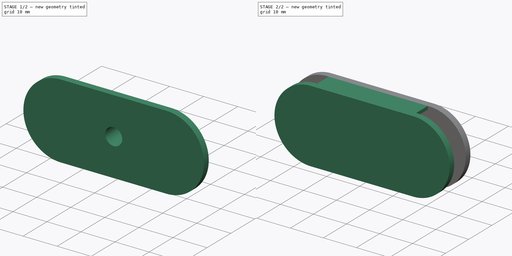
[diagram: build sequence overview — one tinted view per stage of 2, left to right]
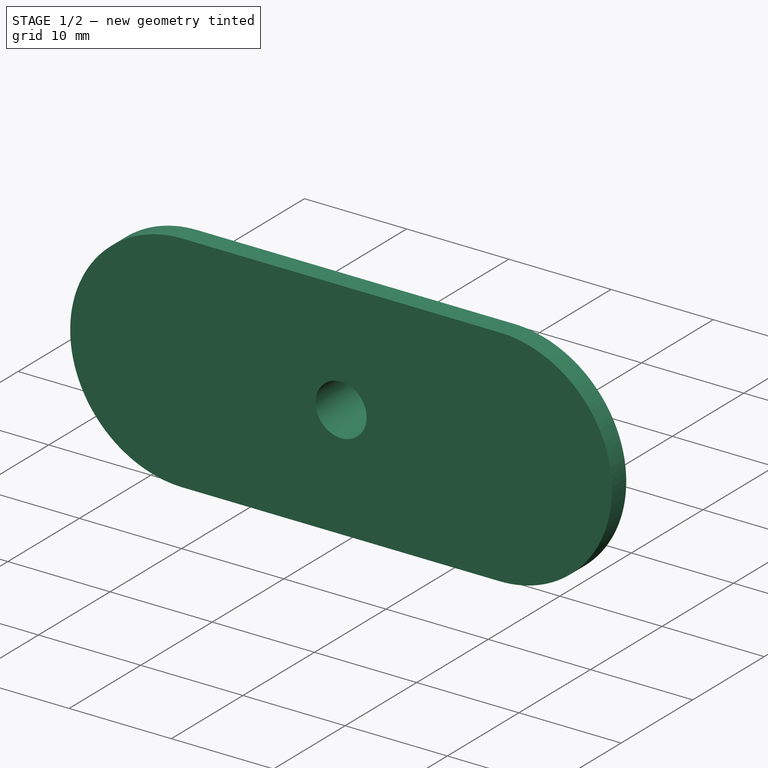
[diagram: stage 1 of 2 — iso view after this stage's code; geometry added in this stage tinted green]
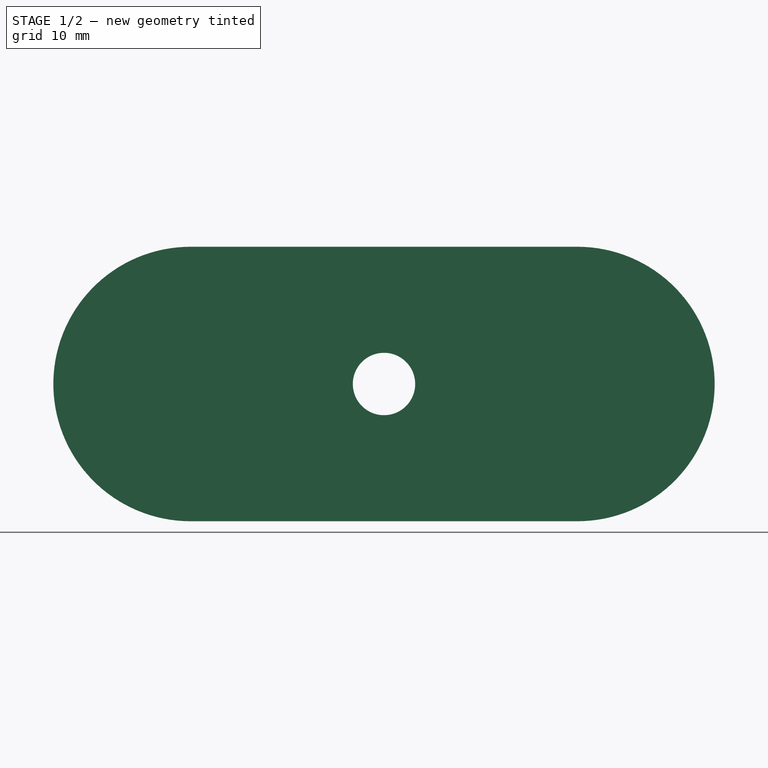
[diagram: stage 1 of 2 — front view after this stage's code; geometry added in this stage tinted green]
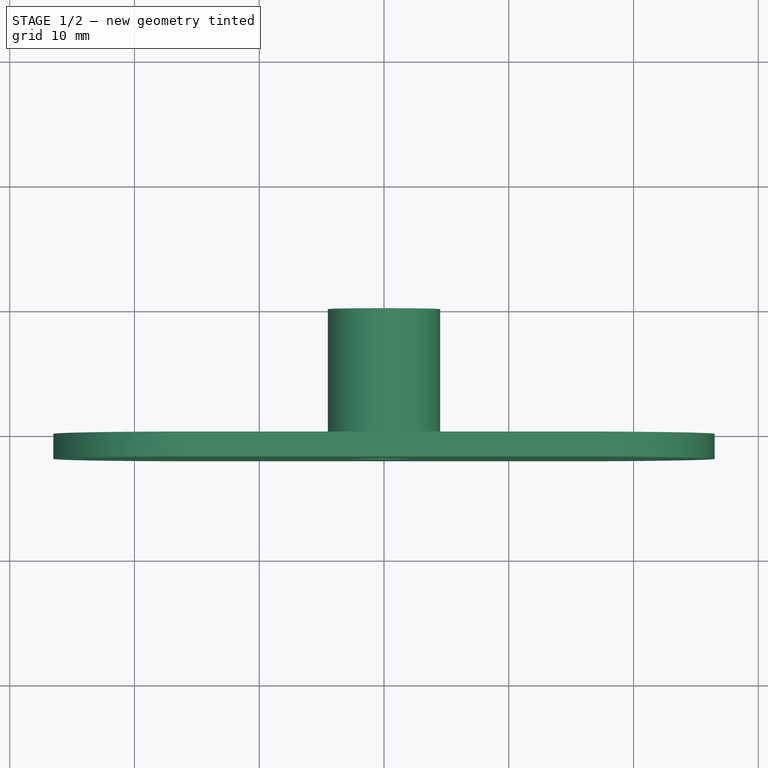
[diagram: stage 1 of 2 — top view after this stage's code; geometry added in this stage tinted green]
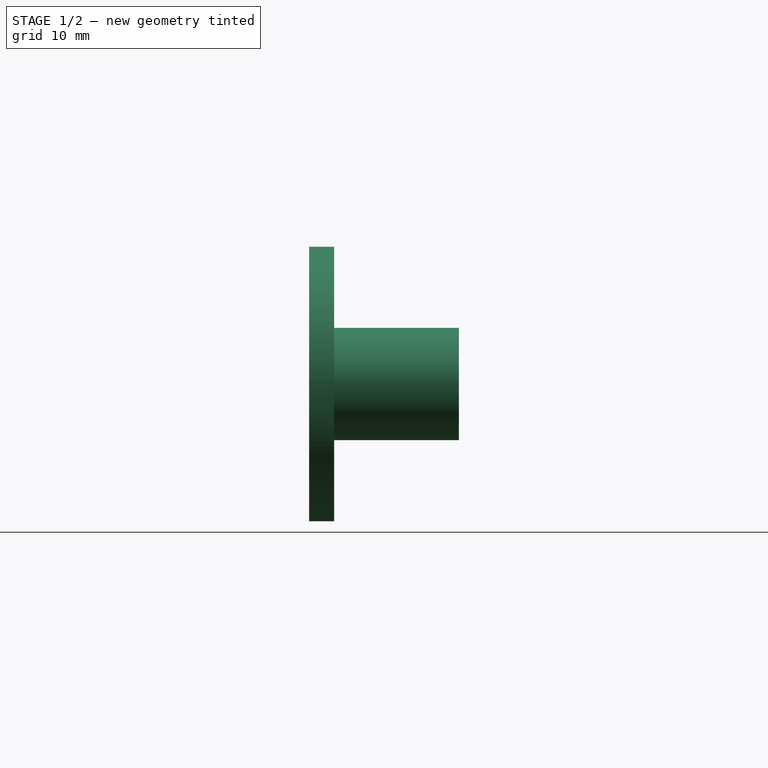
[diagram: stage 1 of 2 — right view after this stage's code; geometry added in this stage tinted green]
FCSTD DOCUMENT  (FreeCAD 0.16R6706 (Git))
Label: Stepper_magnet_holder_01
License: All rights reserved
LicenseURL: http://en.wikipedia.org/wiki/All_rights_reserved
objects: Sketcher::SketchObject×4, PartDesign::Pad×4, Spreadsheet::Sheet×1
note: 12 computed .brp shape members not serialized (recipe doc carries the construction recipe); baked Part::Feature solids carry a one-line shape summary decoded from their .brp

FEATURE [Spreadsheet::Sheet] Spreadsheet  label="prefs"
  cells = A1=Total length; B1(total_length)=20; C1=mm; D1=name=total_length; A2=Stepper radius; B2(stepper_radius)=2.5; C2=mm; D2=name=stepper_radius; A3=Print thickness; B3(print_thickness)=2; C3=mm; D3=name=print_thickness; A4=Magnet radius; B4(magnet_radius)=10; C4=mm; D4=name=magnet_radius; A5=Magnet thickness; B5(magnet_thickness)=5; C5=mm; D5=name=magnet_thickness; A6=Fixation hole radius; B6(fixing_hole)=1; C6=mm; D6=name=fixing_hole
FEATURE [Sketcher::SketchObject] Sketch
  Placement = pos=(0,0,0) rot=(1,0,0;1.5708rad)
  expr: Constraints[2] = prefs.stepper_radius + prefs.print_thickness
  expr: Constraints[1] = prefs.stepper_radius
  sketch-geometry (2):
    g0: Circle CenterX=0 CenterY=0 CenterZ=0 NormalX=0 NormalY=0 NormalZ=1 Radius=2.5
    g1: Circle CenterX=0 CenterY=0 CenterZ=0 NormalX=0 NormalY=0 NormalZ=1 Radius=4.5
  constraints (4):
    c: Coincident(g1,g-1)
    c: Radius(g0) = 2.5
    c: Radius(g1) = 4.5
    c: Coincident(g0,g-1)
FEATURE [PartDesign::Pad] Pad
  Length = 10
  Length2 = 100
  Placement = pos=(0,0,0) rot=(1,0,0;1.5708rad)
  Sketch = -> Sketch
  Type = 0
  expr: Length = prefs.magnet_radius
FEATURE [Sketcher::SketchObject] Sketch001
  Placement = pos=(0,-10,0) rot=(1,0,0;1.5708rad)
  Support = -> Pad [Face4]
  expr: Constraints[15] = prefs.magnet_radius + prefs.stepper_radius + prefs.print_thickness + 1
  expr: Constraints[14] = prefs.magnet_radius + prefs.stepper_radius + prefs.print_thickness + 1
  expr: Constraints[13] = prefs.magnet_radius * 2 + prefs.print_thickness
  expr: Constraints[1] = prefs.stepper_radius
  sketch-geometry (5):
    g0: Circle CenterX=0 CenterY=0 CenterZ=0 NormalX=0 NormalY=0 NormalZ=1 Radius=2.5
    g1: LineSegment StartX=15.5 StartY=-11 StartZ=0 EndX=-15.5 EndY=-11 EndZ=0
    g2: LineSegment StartX=-15.5 StartY=11 StartZ=0 EndX=15.5 EndY=11 EndZ=0
    g3: ArcOfCircle CenterX=15.5 CenterY=0 CenterZ=0 NormalX=0 NormalY=0 NormalZ=1 Radius=11 StartAngle=4.71239 EndAngle=7.85398
    g4: ArcOfCircle CenterX=-15.5 CenterY=0 CenterZ=0 NormalX=0 NormalY=0 NormalZ=1 Radius=11 StartAngle=1.57079 EndAngle=4.71239
  constraints (16):
    c: Coincident(g0,g-1)
    c: Radius(g0) = 2.5
    c: Horizontal(g1)
    c: Horizontal(g2)
    c: Coincident(g3,g2)
    c: Coincident(g3,g1)
    c: Tangent(g3,g2)
    c: Tangent(g1,g3)
    c: PointOnObject(g4,g-1)
    c: Coincident(g4,g2)
    c: Coincident(g4,g1)
    c: Tangent(g4,g1)
    c: Tangent(g4,g2)
    c: DistanceY(g1,g2) = 22
    c: DistanceX(g-1,g3) = 15.5
    c: DistanceX(g4,g-1) = 15.5
FEATURE [PartDesign::Pad] Pad001
  Length = 2
  Length2 = 100
  Placement = pos=(0,0,0) rot=(1,0,0;1.5708rad)
  Sketch = -> Sketch001
  Type = 0
  expr: Length = prefs.print_thickness
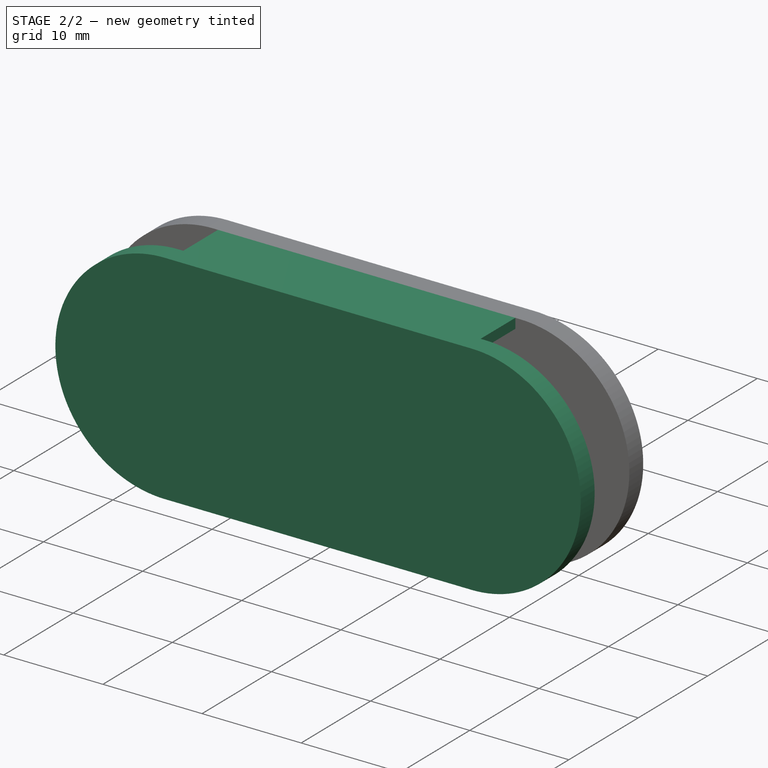
[diagram: stage 2 of 2 — iso view after this stage's code; geometry added in this stage tinted green]
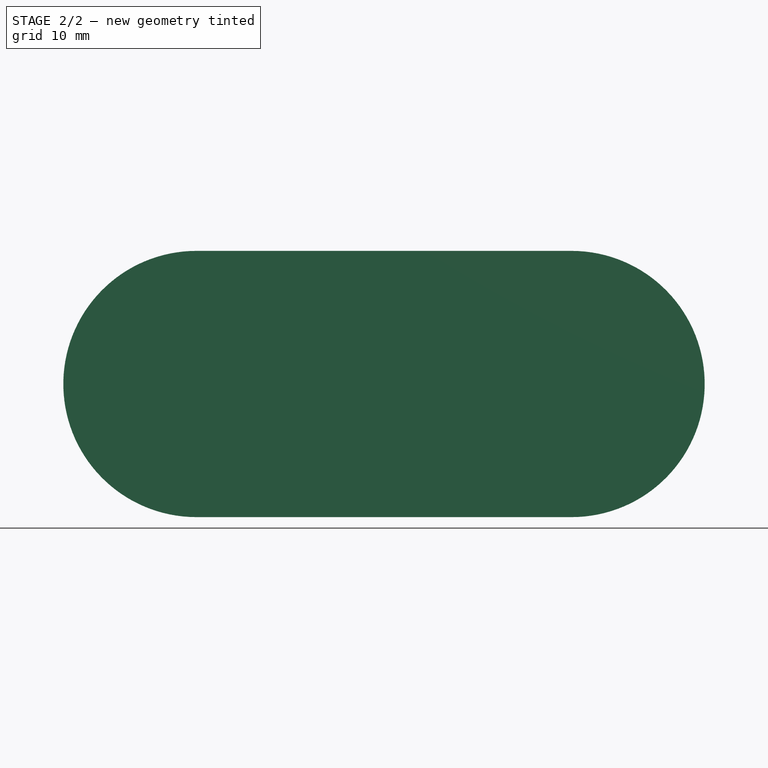
[diagram: stage 2 of 2 — front view after this stage's code; geometry added in this stage tinted green]
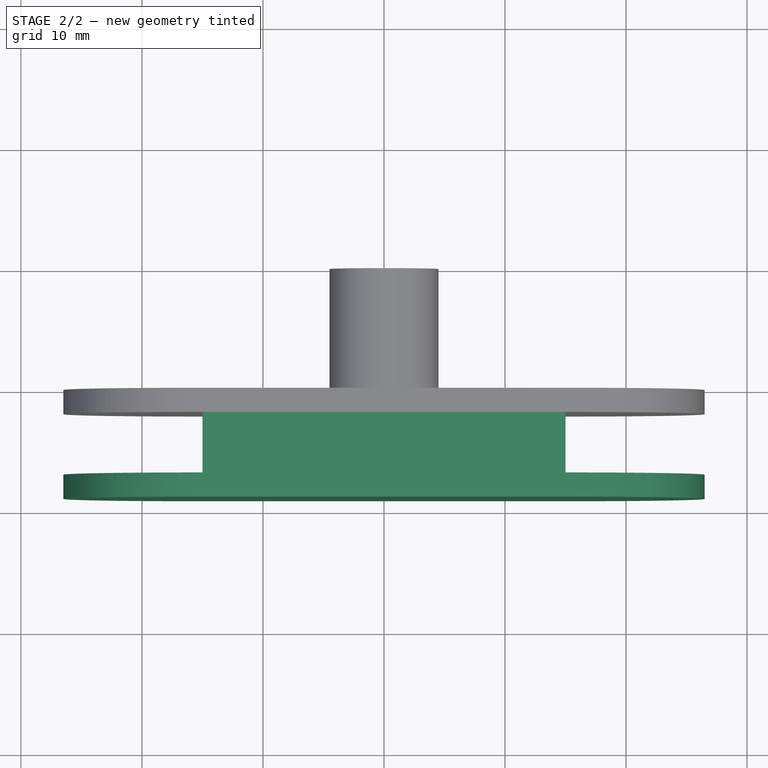
[diagram: stage 2 of 2 — top view after this stage's code; geometry added in this stage tinted green]
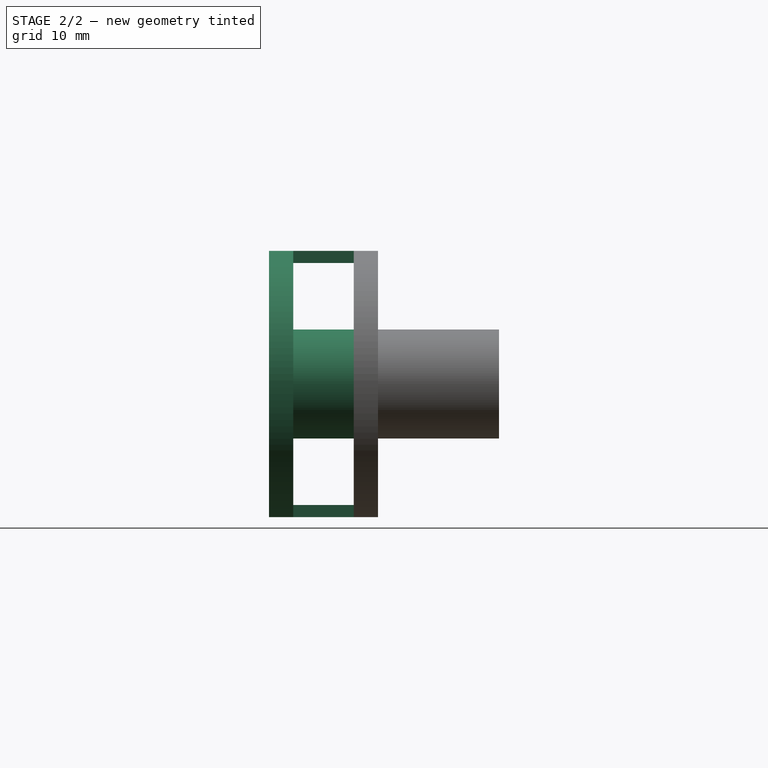
[diagram: stage 2 of 2 — right view after this stage's code; geometry added in this stage tinted green]
FEATURE [Sketcher::SketchObject] Sketch002
  Placement = pos=(0,-12,0) rot=(1,0,0;1.5708rad)
  Support = -> Pad001 [Face10]
  expr: Constraints[27] = prefs.magnet_radius * 1.5
  expr: Constraints[26] = prefs.magnet_radius * 3
  expr: Constraints[24] = prefs.magnet_radius * 1.5
  expr: Constraints[23] = prefs.print_thickness / 2 + prefs.magnet_radius
  expr: Constraints[25] = prefs.magnet_radius * 3
  expr: Constraints[22] = prefs.print_thickness / 2 + prefs.magnet_radius
  expr: Constraints[21] = prefs.print_thickness / 2
  expr: Constraints[20] = prefs.print_thickness / 2
  expr: Constraints[19] = prefs.stepper_radius + prefs.print_thickness
  expr: Constraints[18] = prefs.stepper_radius
  sketch-geometry (10):
    g0: Circle CenterX=0 CenterY=0 CenterZ=0 NormalX=0 NormalY=0 NormalZ=1 Radius=2.5
    g1: Circle CenterX=0 CenterY=0 CenterZ=0 NormalX=0 NormalY=0 NormalZ=1 Radius=4.5
    g2: LineSegment StartX=-15 StartY=11 StartZ=0 EndX=15 EndY=11 EndZ=0
    g3: LineSegment StartX=15 StartY=11 StartZ=0 EndX=15 EndY=10 EndZ=0
    g4: LineSegment StartX=15 StartY=10 StartZ=0 EndX=-15 EndY=10 EndZ=0
    g5: LineSegment StartX=-15 StartY=10 StartZ=0 EndX=-15 EndY=11 EndZ=0
    g6: LineSegment StartX=-15 StartY=-11 StartZ=0 EndX=15 EndY=-11 EndZ=0
    g7: LineSegment StartX=15 StartY=-11 StartZ=0 EndX=15 EndY=-10 EndZ=0
    g8: LineSegment StartX=15 StartY=-10 StartZ=0 EndX=-15 EndY=-10 EndZ=0
    g9: LineSegment StartX=-15 StartY=-10 StartZ=0 EndX=-15 EndY=-11 EndZ=0
  constraints (28):
    c: Coincident(g0,g-1)
    c: Coincident(g1,g-1)
    c: Coincident(g2,g3)
    c: Coincident(g3,g4)
    c: Coincident(g4,g5)
    c: Coincident(g5,g2)
    c: Horizontal(g2)
    c: Horizontal(g4)
    c: Vertical(g3)
    c: Vertical(g5)
    c: Coincident(g6,g7)
    c: Coincident(g7,g8)
    c: Coincident(g8,g9)
    c: Coincident(g9,g6)
    c: Horizontal(g6)
    c: Horizontal(g8)
    c: Vertical(g7)
    c: Vertical(g9)
    c: Radius(g0) = 2.5
    c: Radius(g1) = 4.5
    c: DistanceY(g7,g7) = 1
    c: DistanceY(g3,g3) = 1
    c: DistanceY(g-1,g2) = 11
    c: DistanceY(g6,g-1) = 11
    c: DistanceX(g4,g-1) = 15
    c: DistanceX(g2,g2) = 30
    c: DistanceX(g6,g6) = 30
    c: DistanceX(g8,g-1) = 15
FEATURE [PartDesign::Pad] Pad002
  Length = 5
  Length2 = 100
  Placement = pos=(0,0,0) rot=(1,0,0;1.5708rad)
  Sketch = -> Sketch002
  Type = 0
  expr: Length = prefs.magnet_thickness
FEATURE [Sketcher::SketchObject] Sketch003
  Placement = pos=(0,-17,0) rot=(1,0,0;1.5708rad)
  Support = -> Pad002 [Face14]
  expr: Constraints[12] = prefs.magnet_radius + prefs.stepper_radius + prefs.print_thickness + 1
  expr: Constraints[13] = prefs.magnet_radius + prefs.stepper_radius + prefs.print_thickness + 1
  sketch-geometry (4):
    g0: LineSegment StartX=-15.5 StartY=11 StartZ=0 EndX=15.5 EndY=11 EndZ=0
    g1: LineSegment StartX=15.5 StartY=-11 StartZ=0 EndX=-15.5 EndY=-11 EndZ=0
    g2: ArcOfCircle CenterX=15.5 CenterY=0 CenterZ=0 NormalX=0 NormalY=0 NormalZ=1 Radius=11 StartAngle=4.71239 EndAngle=7.85398
    g3: ArcOfCircle CenterX=-15.5 CenterY=0 CenterZ=0 NormalX=0 NormalY=0 NormalZ=1 Radius=11 StartAngle=1.5708 EndAngle=4.71239
  constraints (14):
    c: Horizontal(g0)
    c: Horizontal(g1)
    c: PointOnObject(g2,g-1)
    c: Coincident(g2,g0)
    c: Coincident(g2,g1)
    c: PointOnObject(g3,g-1)
    c: Coincident(g3,g1)
    c: Coincident(g0,g3)
    c: Tangent(g3,g0)
    c: Tangent(g3,g1)
    c: Tangent(g2,g1)
    c: DistanceY(g-1,g0) = 11
    c: DistanceX(g0,g-1) = 15.5
    c: DistanceX(g-1,g0) = 15.5
FEATURE [PartDesign::Pad] Pad003
  Length = 2
  Length2 = 100
  Placement = pos=(0,0,0) rot=(1,0,0;1.5708rad)
  Sketch = -> Sketch003
  Type = 0
  expr: Length = prefs.print_thickness
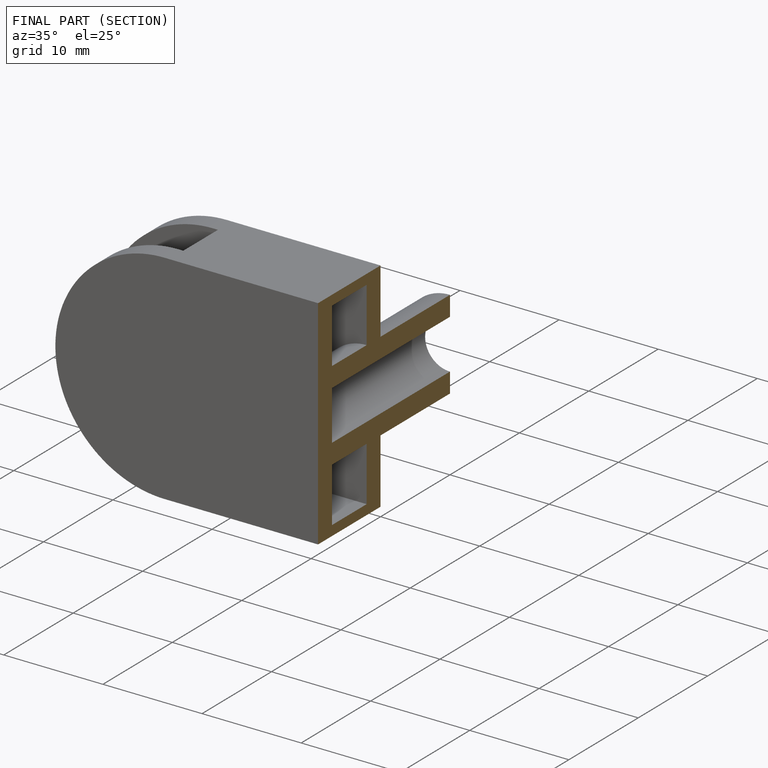
[diagram: finished part — half-section view (interior)]
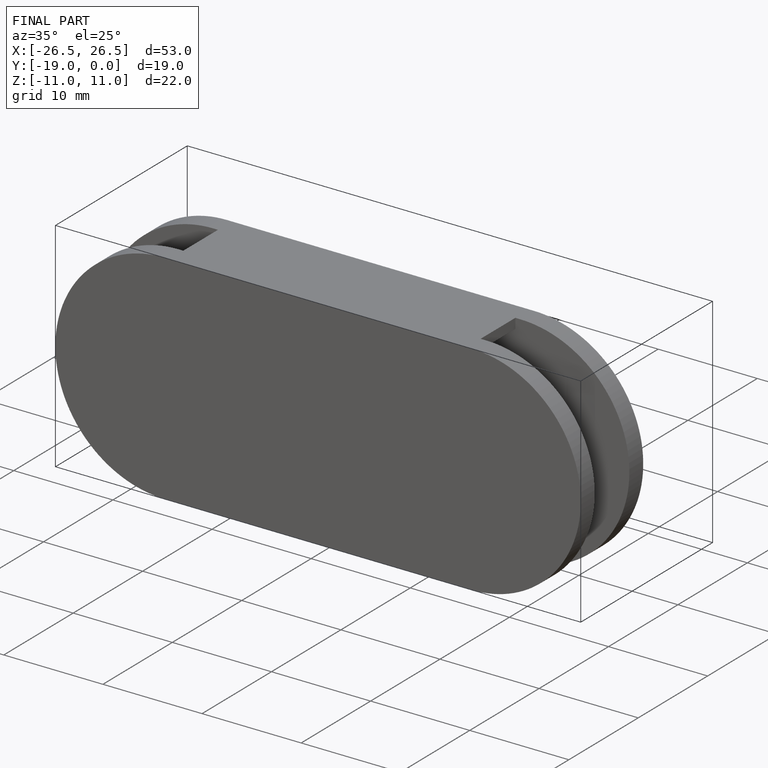
[diagram: finished part — iso view with bounding-box wireframe]
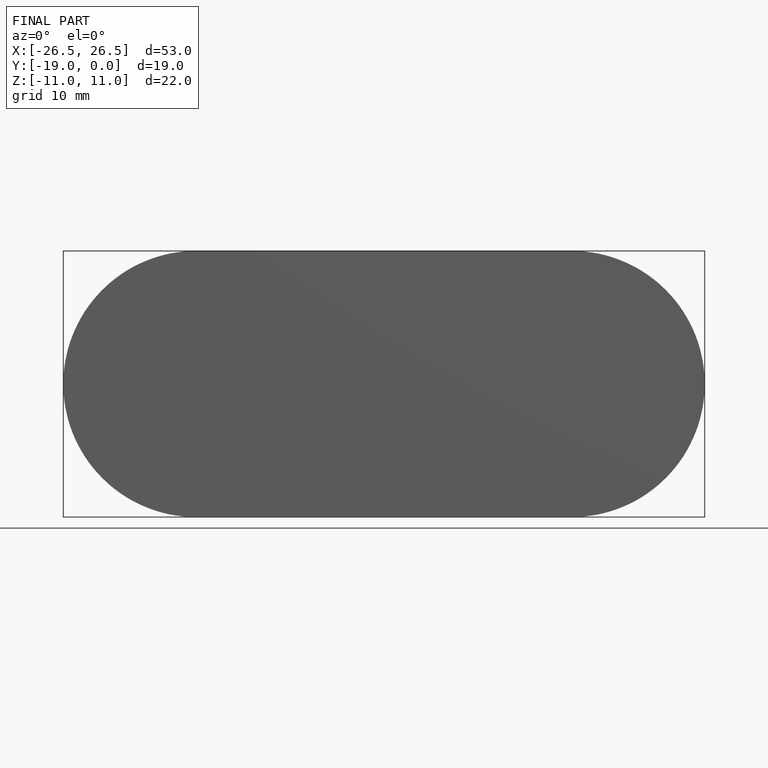
[diagram: finished part — front view with bounding-box wireframe]
